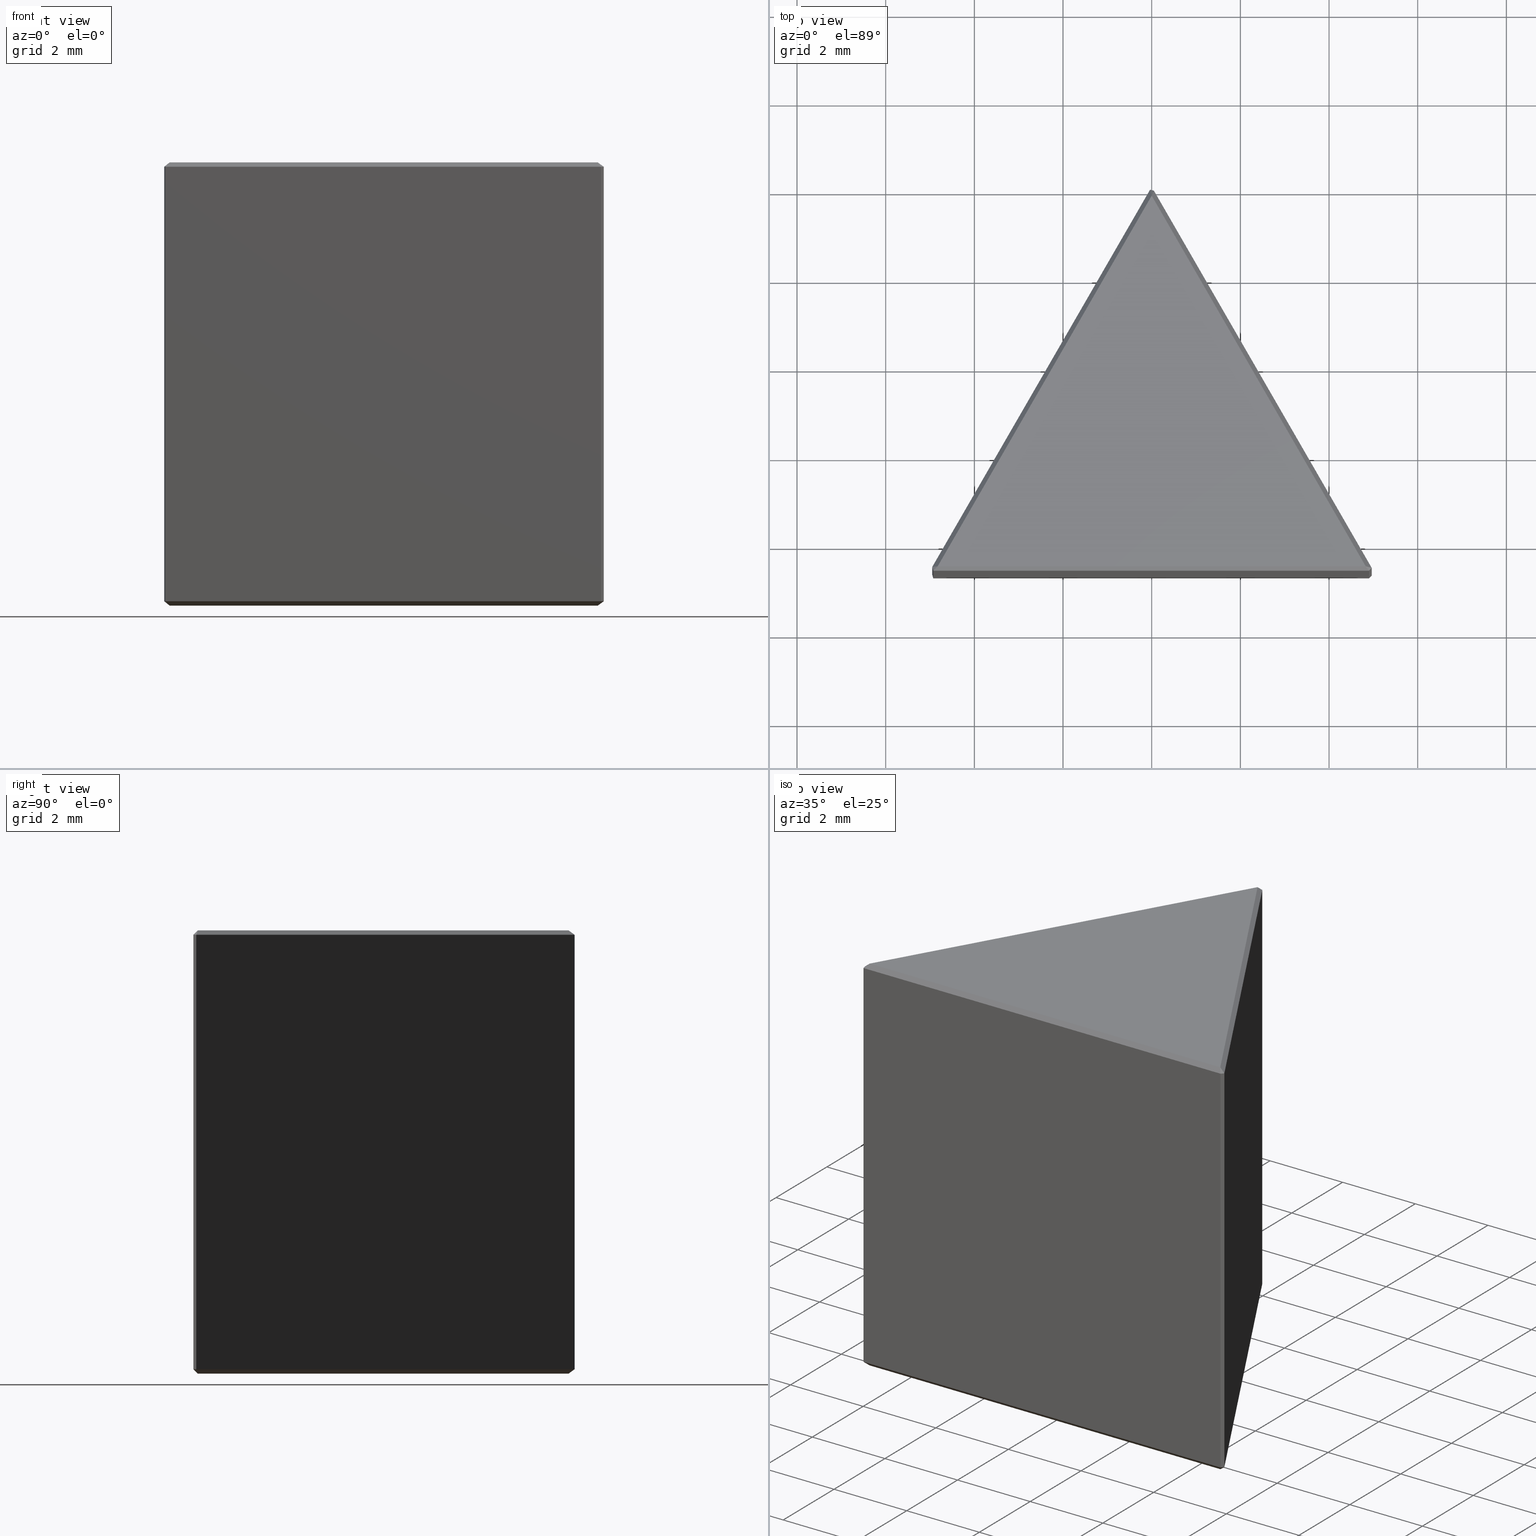
[diagram: canonical four-view strip — front | top / right | iso, engineering-drawing reading convention]
A machine part, canonical four-view strip (front | top / right | iso — engineering-drawing reading convention). The complete STEP part file that produces these views, byte-faithful:
ISO-10303-21;
HEADER;
FILE_DESCRIPTION (( 'STEP AP214' ),
    '1' );
FILE_NAME ('GPD-010-B.STEP',
    '2022-11-08T09:13:05',
    ( '' ),
    ( '' ),
    'SwSTEP 2.0',
    'SolidWorks 2022',
    '' );
FILE_SCHEMA (( 'AUTOMOTIVE_DESIGN' ));
ENDSEC;

DATA;
#1 = PLANE ( 'NONE',  #443 ) ;
#2 = VECTOR ( 'NONE', #394, 1000.000000000000227 ) ;
#3 = DIRECTION ( 'NONE',  ( 0.1636915368707669016, 0.6109051323707307413, 0.7745966692414746335 ) ) ;
#4 = DIRECTION ( 'NONE',  ( 0.000000000000000000, 0.000000000000000000, -1.000000000000000000 ) ) ;
#5 = CARTESIAN_POINT ( 'NONE',  ( 5.000000000000000000, -8.660254037844387298, 0.09999999999999939493 ) ) ;
#6 = CARTESIAN_POINT ( 'NONE',  ( -4.913397459621557495, -8.710254037844386232, 10.00000000000000000 ) ) ;
#7 = CARTESIAN_POINT ( 'NONE',  ( 4.899999999999998579, -8.660254037844387298, 0.09999999999999939493 ) ) ;
#8 =( LENGTH_UNIT ( ) NAMED_UNIT ( * ) SI_UNIT ( .MILLI., .METRE. ) );
#9 = AXIS2_PLACEMENT_3D ( 'NONE', #113, #150, #500 ) ;
#10 = CARTESIAN_POINT ( 'NONE',  ( -4.949999999999999289, -8.573651497465942128, 9.899999999999998579 ) ) ;
#11 = UNCERTAINTY_MEASURE_WITH_UNIT (LENGTH_MEASURE( 1.000000000000000082E-05 ), #34, 'distance_accuracy_value', 'NONE');
#12 = EDGE_CURVE ( 'NONE', #492, #442, #75, .T. ) ;
#13 = LINE ( 'NONE', #83, #335 ) ;
#14 = VECTOR ( 'NONE', #400, 1000.000000000000227 ) ;
#15 = FILL_AREA_STYLE_COLOUR ( '', #284 ) ;
#16 = DIRECTION ( 'NONE',  ( 0.8660254037844387076, -0.5000000000000001110, 0.000000000000000000 ) ) ;
#17 = DIRECTION ( 'NONE',  ( -0.2113248654051791131, 0.7886751345948235237, 0.5773502691896141847 ) ) ;
#18 = LINE ( 'NONE', #332, #407 ) ;
#19 = ORIENTED_EDGE ( 'NONE', *, *, #325, .F. ) ;
#20 = FACE_OUTER_BOUND ( 'NONE', #217, .T. ) ;
#21 = EDGE_CURVE ( 'NONE', #387, #414, #392, .T. ) ;
#22 = CARTESIAN_POINT ( 'NONE',  ( -5.000000000000000000, -8.660254037844387298, 0.09999999999999939493 ) ) ;
#23 = VECTOR ( 'NONE', #485, 1000.000000000000000 ) ;
#24 = ORIENTED_EDGE ( 'NONE', *, *, #47, .T. ) ;
#25 = FILL_AREA_STYLE ('',( #31 ) ) ;
#26 = VECTOR ( 'NONE', #17, 1000.000000000000000 ) ;
#27 = CARTESIAN_POINT ( 'NONE',  ( 0.08660254037844479502, -0.05000000000000055095, 0.000000000000000000 ) ) ;
#28 = SURFACE_STYLE_FILL_AREA ( #25 ) ;
#29 = DIRECTION ( 'NONE',  ( 1.000000000000000000, 0.000000000000000000, 0.000000000000000000 ) ) ;
#30 = CARTESIAN_POINT ( 'NONE',  ( 0.000000000000000000, 0.000000000000000000, 10.00000000000000000 ) ) ;
#31 = FILL_AREA_STYLE_COLOUR ( '', #274 ) ;
#32 = ADVANCED_FACE ( 'NONE', ( #82 ), #359, .F. ) ;
#33 = ORIENTED_EDGE ( 'NONE', *, *, #120, .F. ) ;
#34 =( LENGTH_UNIT ( ) NAMED_UNIT ( * ) SI_UNIT ( .MILLI., .METRE. ) );
#35 = ADVANCED_FACE ( 'NONE', ( #84 ), #173, .F. ) ;
#36 = VECTOR ( 'NONE', #280, 999.9999999999998863 ) ;
#37 = ORIENTED_EDGE ( 'NONE', *, *, #265, .T. ) ;
#38 = PLANE ( 'NONE',  #231 ) ;
#39 = ORIENTED_EDGE ( 'NONE', *, *, #391, .F. ) ;
#40 = ADVANCED_FACE ( 'NONE', ( #87 ), #1, .F. ) ;
#41 = ORIENTED_EDGE ( 'NONE', *, *, #218, .T. ) ;
#42 = VECTOR ( 'NONE', #336, 999.9999999999998863 ) ;
#43 = ORIENTED_EDGE ( 'NONE', *, *, #256, .T. ) ;
#44 = CARTESIAN_POINT ( 'NONE',  ( 5.000000000000000000, -8.660254037844387298, 10.00000000000000000 ) ) ;
#45 = LINE ( 'NONE', #172, #358 ) ;
#46 = DIRECTION ( 'NONE',  ( -0.6123724356957840342, -0.3535533905932677357, 0.7071067811865597852 ) ) ;
#47 = EDGE_CURVE ( 'NONE', #292, #333, #425, .T. ) ;
#48 = DIRECTION ( 'NONE',  ( 1.000000000000000000, 0.000000000000000000, 0.000000000000000000 ) ) ;
#49 = VECTOR ( 'NONE', #398, 1000.000000000000227 ) ;
#50 = PLANE ( 'NONE',  #243 ) ;
#51 =( NAMED_UNIT ( * ) PLANE_ANGLE_UNIT ( ) SI_UNIT ( $, .RADIAN. ) );
#52 = APPLICATION_CONTEXT ( 'automotive_design' ) ;
#53 = PLANE ( 'NONE',  #114 ) ;
#54 = CARTESIAN_POINT ( 'NONE',  ( 0.000000000000000000, 0.000000000000000000, 0.000000000000000000 ) ) ;
#55 = DIRECTION ( 'NONE',  ( -0.5773502691896357231, -0.5773502691896257311, 0.5773502691896158501 ) ) ;
#56 = APPLICATION_PROTOCOL_DEFINITION ( 'draft international standard', 'automotive_design', 1998, #293 ) ;
#57 = FACE_OUTER_BOUND ( 'NONE', #159, .T. ) ;
#58 = UNCERTAINTY_MEASURE_WITH_UNIT (LENGTH_MEASURE( 1.000000000000000082E-05 ), #158, 'distance_accuracy_value', 'NONE');
#59 = EDGE_LOOP ( 'NONE', ( #189, #369, #148, #77 ) ) ;
#60 = CARTESIAN_POINT ( 'NONE',  ( -5.085960881141425601E-17, -0.1999999999999986511, 10.00000000000000000 ) ) ;
#61 = VECTOR ( 'NONE', #253, 1000.000000000000000 ) ;
#62 = CARTESIAN_POINT ( 'NONE',  ( 0.000000000000000000, 0.000000000000000000, 0.000000000000000000 ) ) ;
#63 = CARTESIAN_POINT ( 'NONE',  ( 0.05000000000000062034, -0.08660254037844491992, 0.09999999999999903411 ) ) ;
#64 = ADVANCED_FACE ( 'NONE', ( #245 ), #464, .T. ) ;
#65 = ORIENTED_EDGE ( 'NONE', *, *, #356, .T. ) ;
#66 = DIRECTION ( 'NONE',  ( -0.000000000000000000, 0.7071067811865414665, 0.7071067811865536790 ) ) ;
#67 = VERTEX_POINT ( 'NONE', #204 ) ;
#68 = EDGE_CURVE ( 'NONE', #477, #305, #276, .T. ) ;
#69 = PLANE ( 'NONE',  #262 ) ;
#70 = VECTOR ( 'NONE', #469, 1000.000000000000114 ) ;
#71 = LINE ( 'NONE', #448, #42 ) ;
#72 = DIRECTION ( 'NONE',  ( -0.6123724356957999104, 0.3535533905932768950, 0.7071067811865412445 ) ) ;
#73 = EDGE_LOOP ( 'NONE', ( #339, #404, #19 ) ) ;
#74 = EDGE_LOOP ( 'NONE', ( #345, #215, #388 ) ) ;
#75 = LINE ( 'NONE', #10, #14 ) ;
#76 = EDGE_CURVE ( 'NONE', #67, #188, #125, .T. ) ;
#77 = ORIENTED_EDGE ( 'NONE', *, *, #89, .F. ) ;
#78 = ADVANCED_FACE ( 'NONE', ( #237 ), #53, .F. ) ;
#79 = ORIENTED_EDGE ( 'NONE', *, *, #249, .F. ) ;
#80 = MECHANICAL_DESIGN_GEOMETRIC_PRESENTATION_REPRESENTATION (  '', ( #229 ), #462 ) ;
#81 = CARTESIAN_POINT ( 'NONE',  ( 0.05000000000000062728, -0.08660254037844491992, 9.899999999999998579 ) ) ;
#82 = FACE_OUTER_BOUND ( 'NONE', #59, .T. ) ;
#83 = CARTESIAN_POINT ( 'NONE',  ( 0.05000000000000056483, -0.08660254037844497543, 10.00000000000000000 ) ) ;
#84 = FACE_OUTER_BOUND ( 'NONE', #474, .T. ) ;
#85 = UNCERTAINTY_MEASURE_WITH_UNIT (LENGTH_MEASURE( 1.000000000000000082E-05 ), #8, 'distance_accuracy_value', 'NONE');
#86 = CARTESIAN_POINT ( 'NONE',  ( -0.03660254037844420244, -0.06339745962155671211, 0.09999999999999913125 ) ) ;
#87 = FACE_OUTER_BOUND ( 'NONE', #74, .T. ) ;
#88 = AXIS2_PLACEMENT_3D ( 'NONE', #318, #461, #326 ) ;
#89 = EDGE_CURVE ( 'NONE', #457, #67, #248, .T. ) ;
#90 = FACE_OUTER_BOUND ( 'NONE', #190, .T. ) ;
#91 = DIRECTION ( 'NONE',  ( -0.4597008433809920969, 0.6279630301995566821, -0.6279630301995455799 ) ) ;
#92 = DIRECTION ( 'NONE',  ( 1.000000000000000000, 0.000000000000000000, -0.000000000000000000 ) ) ;
#93 = CARTESIAN_POINT ( 'NONE',  ( -4.926794919243112858, -8.660254037844387298, 0.09999999999999939493 ) ) ;
#94 = DIRECTION ( 'NONE',  ( 0.4472135954999703067, -0.4472135954999642005, 0.7745966692414727461 ) ) ;
#95 = DIRECTION ( 'NONE',  ( 0.000000000000000000, -0.7851876162409402449, 0.6192579489210210397 ) ) ;
#96 = LINE ( 'NONE', #99, #122 ) ;
#97 = ORIENTED_EDGE ( 'NONE', *, *, #267, .F. ) ;
#98 =( NAMED_UNIT ( * ) PLANE_ANGLE_UNIT ( ) SI_UNIT ( $, .RADIAN. ) );
#99 = CARTESIAN_POINT ( 'NONE',  ( -5.000000000000000000, -8.660254037844387298, 9.899999999999998579 ) ) ;
#100 = VERTEX_POINT ( 'NONE', #362 ) ;
#101 = CARTESIAN_POINT ( 'NONE',  ( 4.899999999999998579, -8.660254037844387298, 9.899999999999998579 ) ) ;
#102 = ORIENTED_EDGE ( 'NONE', *, *, #279, .T. ) ;
#103 = FACE_OUTER_BOUND ( 'NONE', #269, .T. ) ;
#104 = PLANE ( 'NONE',  #455 ) ;
#105 = ORIENTED_EDGE ( 'NONE', *, *, #446, .T. ) ;
#106 = DIRECTION ( 'NONE',  ( 0.000000000000000000, -0.7071067811865536790, 0.7071067811865414665 ) ) ;
#107 = AXIS2_PLACEMENT_3D ( 'NONE', #395, #460, #4 ) ;
#108 = EDGE_CURVE ( 'NONE', #305, #457, #321, .T. ) ;
#109 = ORIENTED_EDGE ( 'NONE', *, *, #198, .T. ) ;
#110 = ORIENTED_EDGE ( 'NONE', *, *, #267, .T. ) ;
#111 = EDGE_LOOP ( 'NONE', ( #191, #486, #418 ) ) ;
#112 = AXIS2_PLACEMENT_3D ( 'NONE', #297, #228, #478 ) ;
#113 = CARTESIAN_POINT ( 'NONE',  ( -5.000000000000000000, -8.660254037844387298, 10.00000000000000000 ) ) ;
#114 = AXIS2_PLACEMENT_3D ( 'NONE', #44, #162, #436 ) ;
#115 = ORIENTED_EDGE ( 'NONE', *, *, #120, .T. ) ;
#116 = FACE_OUTER_BOUND ( 'NONE', #258, .T. ) ;
#117 = EDGE_LOOP ( 'NONE', ( #105, #102, #351, #24 ) ) ;
#118 = DIRECTION ( 'NONE',  ( -0.6109051323707356262, -0.1636915368707561325, 0.7745966692414730792 ) ) ;
#119 = PRODUCT ( 'GPD-010-B', 'GPD-010-B', '', ( #219 ) ) ;
#120 = EDGE_CURVE ( 'NONE', #292, #496, #45, .T. ) ;
#121 = ADVANCED_FACE ( 'NONE', ( #466 ), #430, .T. ) ;
#122 = VECTOR ( 'NONE', #411, 1000.000000000000000 ) ;
#123 = VECTOR ( 'NONE', #440, 1000.000000000000114 ) ;
#124 = CARTESIAN_POINT ( 'NONE',  ( 4.899999999999998579, -8.660254037844387298, 9.899999999999998579 ) ) ;
#125 = LINE ( 'NONE', #273, #36 ) ;
#126 = DIRECTION ( 'NONE',  ( -0.5000000000000000000, 0.8660254037844385966, 0.000000000000000000 ) ) ;
#127 = PRESENTATION_STYLE_ASSIGNMENT (( #209 ) ) ;
#128 = EDGE_CURVE ( 'NONE', #353, #177, #169, .T. ) ;
#129 = CARTESIAN_POINT ( 'NONE',  ( -0.08660254037844333785, -0.04999999999999969746, 10.00000000000000000 ) ) ;
#130 = LINE ( 'NONE', #213, #26 ) ;
#131 = DIRECTION ( 'NONE',  ( 0.000000000000000000, 0.000000000000000000, 1.000000000000000000 ) ) ;
#132 = AXIS2_PLACEMENT_3D ( 'NONE', #344, #360, #166 ) ;
#133 = CARTESIAN_POINT ( 'NONE',  ( 4.826794919243109661, -8.560254037844385877, 0.000000000000000000 ) ) ;
#134 = DIRECTION ( 'NONE',  ( 0.5000000000000001110, 0.8660254037844385966, 0.000000000000000000 ) ) ;
#135 = PRODUCT_DEFINITION_CONTEXT ( 'detailed design', #52, 'design' ) ;
#136 = PLANE ( 'NONE',  #434 ) ;
#137 = CARTESIAN_POINT ( 'NONE',  ( -4.949999999999999289, -8.573651497465942128, 10.00000000000000000 ) ) ;
#138 = LINE ( 'NONE', #141, #123 ) ;
#139 = VECTOR ( 'NONE', #338, 1000.000000000000000 ) ;
#140 = ORIENTED_EDGE ( 'NONE', *, *, #260, .F. ) ;
#141 = CARTESIAN_POINT ( 'NONE',  ( -0.02886751345948138092, -0.09226497308103827344, 9.921132486540518158 ) ) ;
#142 = CARTESIAN_POINT ( 'NONE',  ( 4.899999999999998579, -8.660254037844387298, 9.899999999999998579 ) ) ;
#143 = CARTESIAN_POINT ( 'NONE',  ( 0.000000000000000000, -8.560254037844387653, 10.00000000000000000 ) ) ;
#144 = CARTESIAN_POINT ( 'NONE',  ( -4.926794919243112858, -8.660254037844387298, 0.09999999999999939493 ) ) ;
#145 = ORIENTED_EDGE ( 'NONE', *, *, #325, .T. ) ;
#146 = CARTESIAN_POINT ( 'NONE',  ( -0.03660254037844420938, -0.06339745962155671211, 9.899999999999998579 ) ) ;
#147 = AXIS2_PLACEMENT_3D ( 'NONE', #427, #401, #207 ) ;
#148 = ORIENTED_EDGE ( 'NONE', *, *, #463, .F. ) ;
#149 = ADVANCED_FACE ( 'NONE', ( #240 ), #323, .T. ) ;
#150 = DIRECTION ( 'NONE',  ( 0.000000000000000000, 1.000000000000000000, 0.000000000000000000 ) ) ;
#151 = CARTESIAN_POINT ( 'NONE',  ( 0.08660254037844332398, -0.04999999999999969053, 10.00000000000000000 ) ) ;
#152 = ORIENTED_EDGE ( 'NONE', *, *, #350, .T. ) ;
#153 = DIRECTION ( 'NONE',  ( 0.5000000000000001110, 0.8660254037844387076, 0.000000000000000000 ) ) ;
#154 = EDGE_LOOP ( 'NONE', ( #225, #79, #140, #316 ) ) ;
#155 = MECHANICAL_DESIGN_GEOMETRIC_PRESENTATION_REPRESENTATION (  '', ( #163 ), #396 ) ;
#156 = VECTOR ( 'NONE', #433, 1000.000000000000000 ) ;
#157 = VERTEX_POINT ( 'NONE', #432 ) ;
#158 =( LENGTH_UNIT ( ) NAMED_UNIT ( * ) SI_UNIT ( .MILLI., .METRE. ) );
#159 = EDGE_LOOP ( 'NONE', ( #33, #181, #272, #236 ) ) ;
#160 = EDGE_CURVE ( 'NONE', #157, #100, #224, .T. ) ;
#161 = ADVANCED_FACE ( 'NONE', ( #57 ), #69, .F. ) ;
#162 = DIRECTION ( 'NONE',  ( -0.8660254037844387076, -0.5000000000000001110, 0.000000000000000000 ) ) ;
#163 = STYLED_ITEM ( 'NONE', ( #341 ), #459 ) ;
#164 = VECTOR ( 'NONE', #377, 1000.000000000000000 ) ;
#165 = CARTESIAN_POINT ( 'NONE',  ( -4.949999999999999289, -8.573651497465942128, 9.899999999999998579 ) ) ;
#166 = DIRECTION ( 'NONE',  ( 0.000000000000000000, 0.7851876162409597848, 0.6192579489209962817 ) ) ;
#167 =( NAMED_UNIT ( * ) SI_UNIT ( $, .STERADIAN. ) SOLID_ANGLE_UNIT ( ) );
#168 = ADVANCED_FACE ( 'NONE', ( #370 ), #184, .F. ) ;
#169 = LINE ( 'NONE', #124, #211 ) ;
#170 = LINE ( 'NONE', #283, #312 ) ;
#171 =( NAMED_UNIT ( * ) SI_UNIT ( $, .STERADIAN. ) SOLID_ANGLE_UNIT ( ) );
#172 = CARTESIAN_POINT ( 'NONE',  ( -4.926794919243112858, -8.660254037844387298, 0.09999999999999939493 ) ) ;
#173 = PLANE ( 'NONE',  #107 ) ;
#174 = VECTOR ( 'NONE', #134, 1000.000000000000114 ) ;
#175 = DIRECTION ( 'NONE',  ( 0.000000000000000000, 0.000000000000000000, 1.000000000000000000 ) ) ;
#176 = CARTESIAN_POINT ( 'NONE',  ( -4.905662432702594167, -8.639121551303865942, 9.921132486540518158 ) ) ;
#177 = VERTEX_POINT ( 'NONE', #261 ) ;
#178 = EDGE_CURVE ( 'NONE', #442, #292, #413, .T. ) ;
#179 = CARTESIAN_POINT ( 'NONE',  ( 4.963397459621555541, -8.596856578222828560, 0.09999999999999903411 ) ) ;
#180 = DIRECTION ( 'NONE',  ( 1.000000000000000000, 0.000000000000000000, -0.000000000000000000 ) ) ;
#181 = ORIENTED_EDGE ( 'NONE', *, *, #178, .F. ) ;
#182 = LINE ( 'NONE', #137, #200 ) ;
#183 = VECTOR ( 'NONE', #55, 999.9999999999998863 ) ;
#184 = PLANE ( 'NONE',  #450 ) ;
#185 = ORIENTED_EDGE ( 'NONE', *, *, #128, .F. ) ;
#186 = SURFACE_STYLE_USAGE ( .BOTH. , #475 ) ;
#187 = ORIENTED_EDGE ( 'NONE', *, *, #12, .T. ) ;
#188 = VERTEX_POINT ( 'NONE', #63 ) ;
#189 = ORIENTED_EDGE ( 'NONE', *, *, #218, .F. ) ;
#190 = EDGE_LOOP ( 'NONE', ( #317, #37, #264 ) ) ;
#191 = ORIENTED_EDGE ( 'NONE', *, *, #463, .T. ) ;
#192 = FACE_OUTER_BOUND ( 'NONE', #117, .T. ) ;
#193 = VECTOR ( 'NONE', #368, 1000.000000000000000 ) ;
#194 = ADVANCED_FACE ( 'NONE', ( #289 ), #445, .F. ) ;
#195 = ORIENTED_EDGE ( 'NONE', *, *, #484, .T. ) ;
#196 = CARTESIAN_POINT ( 'NONE',  ( 4.963397459621555541, -8.596856578222828560, 10.00000000000000000 ) ) ;
#197 = DIRECTION ( 'NONE',  ( 0.4597008433809659511, -0.6279630301995552388, -0.6279630301995660080 ) ) ;
#198 = EDGE_CURVE ( 'NONE', #414, #353, #437, .T. ) ;
#199 = DIRECTION ( 'NONE',  ( -0.8660254037844433705, 0.000000000000000000, -0.4999999999999917843 ) ) ;
#200 = VECTOR ( 'NONE', #221, 1000.000000000000000 ) ;
#201 = DIRECTION ( 'NONE',  ( 0.5000000000000001110, -0.8660254037844387076, -0.000000000000000000 ) ) ;
#202 = LINE ( 'NONE', #277, #2 ) ;
#203 = CARTESIAN_POINT ( 'NONE',  ( 4.963397459621555541, -8.596856578222828560, 0.09999999999999903411 ) ) ;
#204 = CARTESIAN_POINT ( 'NONE',  ( 4.963397459621555541, -8.596856578222828560, 0.09999999999999903411 ) ) ;
#205 = FACE_OUTER_BOUND ( 'NONE', #111, .T. ) ;
#206 = SURFACE_SIDE_STYLE ('',( #285 ) ) ;
#207 = DIRECTION ( 'NONE',  ( 0.000000000000000000, 0.000000000000000000, -1.000000000000000000 ) ) ;
#208 = CARTESIAN_POINT ( 'NONE',  ( 4.826794919243114101, -8.560254037844387653, 10.00000000000000000 ) ) ;
#209 = SURFACE_STYLE_USAGE ( .BOTH. , #206 ) ;
#210 = DIRECTION ( 'NONE',  ( 0.000000000000000000, 0.000000000000000000, 1.000000000000000000 ) ) ;
#211 = VECTOR ( 'NONE', #197, 999.9999999999998863 ) ;
#212 = ADVANCED_FACE ( 'NONE', ( #483 ), #104, .T. ) ;
#213 = CARTESIAN_POINT ( 'NONE',  ( -0.03660254037844420244, -0.06339745962155671211, 0.09999999999999913125 ) ) ;
#214 = DIRECTION ( 'NONE',  ( 1.000000000000000000, 0.000000000000000000, 0.000000000000000000 ) ) ;
#215 = ORIENTED_EDGE ( 'NONE', *, *, #424, .T. ) ;
#216 = CARTESIAN_POINT ( 'NONE',  ( -4.926794919243112858, -8.660254037844387298, 10.00000000000000000 ) ) ;
#217 = EDGE_LOOP ( 'NONE', ( #97, #421, #185, #232 ) ) ;
#218 = EDGE_CURVE ( 'NONE', #177, #457, #329, .T. ) ;
#219 = PRODUCT_CONTEXT ( 'NONE', #293, 'mechanical' ) ;
#220 = VECTOR ( 'NONE', #153, 999.9999999999998863 ) ;
#221 = DIRECTION ( 'NONE',  ( 0.000000000000000000, 0.000000000000000000, 1.000000000000000000 ) ) ;
#222 = AXIS2_PLACEMENT_3D ( 'NONE', #327, #3, #95 ) ;
#223 = EDGE_LOOP ( 'NONE', ( #152, #337, #389, #419 ) ) ;
#224 = LINE ( 'NONE', #27, #174 ) ;
#225 = ORIENTED_EDGE ( 'NONE', *, *, #439, .T. ) ;
#226 = CARTESIAN_POINT ( 'NONE',  ( -0.03660254037844420244, -0.06339745962155671211, 10.00000000000000000 ) ) ;
#227 = ORIENTED_EDGE ( 'NONE', *, *, #271, .F. ) ;
#228 = DIRECTION ( 'NONE',  ( 0.6123724356957892523, -0.3535533905932707333, 0.7071067811865536790 ) ) ;
#229 = STYLED_ITEM ( 'NONE', ( #127 ), #495 ) ;
#230 = VERTEX_POINT ( 'NONE', #298 ) ;
#231 = AXIS2_PLACEMENT_3D ( 'NONE', #151, #72, #266 ) ;
#232 = ORIENTED_EDGE ( 'NONE', *, *, #198, .F. ) ;
#233 = ORIENTED_EDGE ( 'NONE', *, *, #484, .F. ) ;
#234 = ADVANCED_FACE ( 'NONE', ( #257 ), #408, .T. ) ;
#235 = CARTESIAN_POINT ( 'NONE',  ( -4.949999999999999289, -8.573651497465942128, 0.09999999999999913125 ) ) ;
#236 = ORIENTED_EDGE ( 'NONE', *, *, #242, .F. ) ;
#237 = FACE_OUTER_BOUND ( 'NONE', #313, .T. ) ;
#238 = DIRECTION ( 'NONE',  ( 0.9659258262890674240, -0.2588190451025237371, 6.747812811400846156E-16 ) ) ;
#239 = CARTESIAN_POINT ( 'NONE',  ( 4.934529946162074410, -8.589121551303867008, 9.921132486540518158 ) ) ;
#240 = FACE_OUTER_BOUND ( 'NONE', #223, .T. ) ;
#241 = LINE ( 'NONE', #239, #49 ) ;
#242 = EDGE_CURVE ( 'NONE', #496, #492, #182, .T. ) ;
#243 = AXIS2_PLACEMENT_3D ( 'NONE', #5, #46, #126 ) ;
#244 = LINE ( 'NONE', #203, #441 ) ;
#245 = FACE_OUTER_BOUND ( 'NONE', #422, .T. ) ;
#246 = DIRECTION ( 'NONE',  ( 0.4472135954999524321, -0.4472135954999507113, -0.7745966692414907317 ) ) ;
#247 = LINE ( 'NONE', #493, #220 ) ;
#248 = LINE ( 'NONE', #196, #294 ) ;
#249 = EDGE_CURVE ( 'NONE', #100, #340, #250, .T. ) ;
#250 = LINE ( 'NONE', #328, #286 ) ;
#251 = ORIENTED_EDGE ( 'NONE', *, *, #391, .T. ) ;
#252 = CARTESIAN_POINT ( 'NONE',  ( -4.949999999999999289, -8.573651497465942128, 9.899999999999998579 ) ) ;
#253 = DIRECTION ( 'NONE',  ( 0.3139815150997828930, 0.7120941236088286219, -0.6279630301995645647 ) ) ;
#254 = ORIENTED_EDGE ( 'NONE', *, *, #76, .T. ) ;
#255 = DIRECTION ( 'NONE',  ( 0.000000000000000000, 0.000000000000000000, -1.000000000000000000 ) ) ;
#256 = EDGE_CURVE ( 'NONE', #230, #496, #71, .T. ) ;
#257 = FACE_OUTER_BOUND ( 'NONE', #453, .T. ) ;
#258 = EDGE_LOOP ( 'NONE', ( #251, #454, #227, #233 ) ) ;
#259 = PLANE ( 'NONE',  #112 ) ;
#260 = EDGE_CURVE ( 'NONE', #188, #100, #18, .T. ) ;
#261 = CARTESIAN_POINT ( 'NONE',  ( 4.899999999999998579, -8.660254037844387298, 9.899999999999998579 ) ) ;
#262 = AXIS2_PLACEMENT_3D ( 'NONE', #216, #291, #255 ) ;
#263 = ORIENTED_EDGE ( 'NONE', *, *, #256, .F. ) ;
#264 = ORIENTED_EDGE ( 'NONE', *, *, #68, .F. ) ;
#265 = EDGE_CURVE ( 'NONE', #387, #305, #473, .T. ) ;
#266 = DIRECTION ( 'NONE',  ( 0.5000000000000000000, 0.8660254037844385966, -0.000000000000000000 ) ) ;
#267 = EDGE_CURVE ( 'NONE', #442, #414, #367, .T. ) ;
#268 = ORIENTED_EDGE ( 'NONE', *, *, #320, .F. ) ;
#269 = EDGE_LOOP ( 'NONE', ( #308, #263, #349, #309 ) ) ;
#270 = ORIENTED_EDGE ( 'NONE', *, *, #342, .F. ) ;
#271 = EDGE_CURVE ( 'NONE', #477, #387, #138, .T. ) ;
#272 = ORIENTED_EDGE ( 'NONE', *, *, #12, .F. ) ;
#273 = CARTESIAN_POINT ( 'NONE',  ( 5.000000000000000000, -8.660254037844387298, 0.09999999999999939493 ) ) ;
#274 = COLOUR_RGB ( '',1.000000000000000000, 1.000000000000000000, 1.000000000000000000 ) ;
#275 = AXIS2_PLACEMENT_3D ( 'NONE', #444, #210, #180 ) ;
#276 = LINE ( 'NONE', #81, #426 ) ;
#277 = CARTESIAN_POINT ( 'NONE',  ( -4.941746824526945581, -8.572754037844385167, 0.09330127018922210191 ) ) ;
#278 =( NAMED_UNIT ( * ) PLANE_ANGLE_UNIT ( ) SI_UNIT ( $, .RADIAN. ) );
#279 = EDGE_CURVE ( 'NONE', #177, #442, #96, .T. ) ;
#280 = DIRECTION ( 'NONE',  ( -0.5000000000000001110, 0.8660254037844387076, 0.000000000000000000 ) ) ;
#281 = FACE_OUTER_BOUND ( 'NONE', #154, .T. ) ;
#282 = DIRECTION ( 'NONE',  ( 0.5000000000000000000, -0.8660254037844385966, 0.000000000000000000 ) ) ;
#283 = CARTESIAN_POINT ( 'NONE',  ( 4.963397459621555541, -8.596856578222828560, 0.09999999999999903411 ) ) ;
#284 = COLOUR_RGB ( '',1.000000000000000000, 1.000000000000000000, 1.000000000000000000 ) ;
#285 = SURFACE_STYLE_FILL_AREA ( #431 ) ;
#286 = VECTOR ( 'NONE', #417, 1000.000000000000114 ) ;
#287 = DIRECTION ( 'NONE',  ( 0.7851876162409372473, 0.000000000000000000, 0.6192579489210249255 ) ) ;
#288 = ADVANCED_FACE ( 'NONE', ( #116 ), #38, .T. ) ;
#289 = FACE_OUTER_BOUND ( 'NONE', #385, .T. ) ;
#290 = CARTESIAN_POINT ( 'NONE',  ( -4.826794919243114101, -8.560254037844387653, 10.00000000000000000 ) ) ;
#291 = DIRECTION ( 'NONE',  ( 0.9659258262890725311, 0.2588190451025050853, 0.000000000000000000 ) ) ;
#292 = VERTEX_POINT ( 'NONE', #144 ) ;
#293 = APPLICATION_CONTEXT ( 'automotive_design' ) ;
#294 = VECTOR ( 'NONE', #355, 1000.000000000000000 ) ;
#295 = CARTESIAN_POINT ( 'NONE',  ( -4.926794919243112858, -8.660254037844387298, 10.00000000000000000 ) ) ;
#296 = ORIENTED_EDGE ( 'NONE', *, *, #68, .T. ) ;
#297 = CARTESIAN_POINT ( 'NONE',  ( 0.000000000000000000, 0.000000000000000000, 0.09999999999999939493 ) ) ;
#298 = CARTESIAN_POINT ( 'NONE',  ( -0.03660254037844420244, -0.06339745962155671211, 0.09999999999999913125 ) ) ;
#299 = ORIENTED_EDGE ( 'NONE', *, *, #21, .T. ) ;
#300 = PLANE ( 'NONE',  #384 ) ;
#301 = DIRECTION ( 'NONE',  ( 0.5000000000000000000, 0.8660254037844385966, 0.000000000000000000 ) ) ;
#302 = ORIENTED_EDGE ( 'NONE', *, *, #307, .F. ) ;
#303 = PRESENTATION_LAYER_ASSIGNMENT (  '', '', ( #229 ) ) ;
#304 = VECTOR ( 'NONE', #48, 1000.000000000000000 ) ;
#305 = VERTEX_POINT ( 'NONE', #346 ) ;
#306 = LINE ( 'NONE', #452, #23 ) ;
#307 = EDGE_CURVE ( 'NONE', #477, #230, #348, .T. ) ;
#308 = ORIENTED_EDGE ( 'NONE', *, *, #320, .T. ) ;
#309 = ORIENTED_EDGE ( 'NONE', *, *, #160, .F. ) ;
#310 = ADVANCED_FACE ( 'NONE', ( #494 ), #311, .T. ) ;
#311 = PLANE ( 'NONE',  #132 ) ;
#312 = VECTOR ( 'NONE', #482, 1000.000000000000227 ) ;
#313 = EDGE_LOOP ( 'NONE', ( #65, #420, #409, #254 ) ) ;
#314 = VECTOR ( 'NONE', #472, 1000.000000000000114 ) ;
#315 = CARTESIAN_POINT ( 'NONE',  ( -4.949999999999999289, -8.573651497465942128, 9.899999999999998579 ) ) ;
#316 = ORIENTED_EDGE ( 'NONE', *, *, #76, .F. ) ;
#317 = ORIENTED_EDGE ( 'NONE', *, *, #271, .T. ) ;
#318 = CARTESIAN_POINT ( 'NONE',  ( -4.926794919243112858, -8.660254037844387298, 0.09999999999999939493 ) ) ;
#319 = VECTOR ( 'NONE', #381, 1000.000000000000000 ) ;
#320 = EDGE_CURVE ( 'NONE', #157, #496, #202, .T. ) ;
#321 = LINE ( 'NONE', #501, #406 ) ;
#322 = LINE ( 'NONE', #86, #479 ) ;
#323 = PLANE ( 'NONE',  #416 ) ;
#324 = LINE ( 'NONE', #252, #314 ) ;
#325 = EDGE_CURVE ( 'NONE', #188, #230, #322, .T. ) ;
#326 = DIRECTION ( 'NONE',  ( -0.7851876162409547888, 0.000000000000000000, 0.6192579489210027210 ) ) ;
#327 = CARTESIAN_POINT ( 'NONE',  ( 0.05000000000000062728, -0.08660254037844491992, 9.899999999999998579 ) ) ;
#328 = CARTESIAN_POINT ( 'NONE',  ( -0.08660254037844636321, -0.05000000000000144607, 0.000000000000000000 ) ) ;
#329 = LINE ( 'NONE', #142, #139 ) ;
#330 = EDGE_LOOP ( 'NONE', ( #347, #41, #456 ) ) ;
#331 = LINE ( 'NONE', #467, #156 ) ;
#332 = CARTESIAN_POINT ( 'NONE',  ( 0.04665063509461123831, -0.09419872981077902219, 0.09330127018922121374 ) ) ;
#333 = VERTEX_POINT ( 'NONE', #7 ) ;
#334 = VECTOR ( 'NONE', #91, 999.9999999999998863 ) ;
#335 = VECTOR ( 'NONE', #175, 1000.000000000000000 ) ;
#336 = DIRECTION ( 'NONE',  ( -0.5000000000000001110, -0.8660254037844387076, 0.000000000000000000 ) ) ;
#337 = ORIENTED_EDGE ( 'NONE', *, *, #108, .F. ) ;
#338 = DIRECTION ( 'NONE',  ( 0.7071067811865426878, 0.7071067811865524577, -2.866583523299665378E-17 ) ) ;
#339 = ORIENTED_EDGE ( 'NONE', *, *, #260, .T. ) ;
#340 = VERTEX_POINT ( 'NONE', #133 ) ;
#341 = PRESENTATION_STYLE_ASSIGNMENT (( #186 ) ) ;
#342 = EDGE_CURVE ( 'NONE', #157, #292, #365, .T. ) ;
#343 = PRODUCT_DEFINITION_FORMATION_WITH_SPECIFIED_SOURCE ( '�κ�', '', #119, .NOT_KNOWN. ) ;
#344 = CARTESIAN_POINT ( 'NONE',  ( -0.03660254037844420244, -0.06339745962155671211, 0.09999999999999913125 ) ) ;
#345 = ORIENTED_EDGE ( 'NONE', *, *, #249, .T. ) ;
#346 = CARTESIAN_POINT ( 'NONE',  ( 0.05000000000000062728, -0.08660254037844491992, 9.899999999999998579 ) ) ;
#347 = ORIENTED_EDGE ( 'NONE', *, *, #128, .T. ) ;
#348 = LINE ( 'NONE', #226, #319 ) ;
#349 = ORIENTED_EDGE ( 'NONE', *, *, #390, .F. ) ;
#350 = EDGE_CURVE ( 'NONE', #353, #457, #241, .T. ) ;
#351 = ORIENTED_EDGE ( 'NONE', *, *, #178, .T. ) ;
#352 = VECTOR ( 'NONE', #481, 1000.000000000000114 ) ;
#353 = VERTEX_POINT ( 'NONE', #208 ) ;
#354 = PLANE ( 'NONE',  #9 ) ;
#355 = DIRECTION ( 'NONE',  ( 0.000000000000000000, 0.000000000000000000, -1.000000000000000000 ) ) ;
#356 = EDGE_CURVE ( 'NONE', #188, #305, #13, .T. ) ;
#357 = DIRECTION ( 'NONE',  ( 0.6123724356957999104, 0.3535533905932768950, 0.7071067811865412445 ) ) ;
#358 = VECTOR ( 'NONE', #393, 1000.000000000000114 ) ;
#359 = PLANE ( 'NONE',  #147 ) ;
#360 = DIRECTION ( 'NONE',  ( 0.1636915368707596297, 0.6109051323707070935, -0.7745966692414948396 ) ) ;
#361 = DIRECTION ( 'NONE',  ( -0.7071067811865426878, -0.7071067811865522357, 4.048687686840371813E-15 ) ) ;
#362 = CARTESIAN_POINT ( 'NONE',  ( -1.083700895443211318E-15, -0.2000000000000040357, 0.000000000000000000 ) ) ;
#363 = LINE ( 'NONE', #470, #374 ) ;
#364 = CARTESIAN_POINT ( 'NONE',  ( -5.000000000000000000, -8.660254037844387298, 0.09999999999999939493 ) ) ;
#365 = LINE ( 'NONE', #93, #183 ) ;
#366 = CLOSED_SHELL ( 'NONE', ( #78, #194, #490, #234, #40, #449, #161, #168, #32, #212, #64, #121, #397, #149, #288, #458, #386, #429, #310, #35 ) ) ;
#367 = LINE ( 'NONE', #176, #352 ) ;
#368 = DIRECTION ( 'NONE',  ( 1.000000000000000000, 0.000000000000000000, 0.000000000000000000 ) ) ;
#369 = ORIENTED_EDGE ( 'NONE', *, *, #446, .F. ) ;
#370 = FACE_OUTER_BOUND ( 'NONE', #382, .T. ) ;
#371 = ORIENTED_EDGE ( 'NONE', *, *, #356, .F. ) ;
#372 = CARTESIAN_POINT ( 'NONE',  ( -4.926794919243112858, -8.660254037844387298, 9.899999999999998579 ) ) ;
#373 = APPLICATION_PROTOCOL_DEFINITION ( 'draft international standard', 'automotive_design', 1998, #52 ) ;
#374 = VECTOR ( 'NONE', #438, 1000.000000000000114 ) ;
#375 = DIRECTION ( 'NONE',  ( 0.8660254037844297148, 0.000000000000000000, -0.5000000000000155431 ) ) ;
#376 = CARTESIAN_POINT ( 'NONE',  ( 4.963397459621555541, -8.596856578222828560, 9.899999999999998579 ) ) ;
#377 = DIRECTION ( 'NONE',  ( 0.000000000000000000, 0.000000000000000000, -1.000000000000000000 ) ) ;
#378 = ORIENTED_EDGE ( 'NONE', *, *, #307, .T. ) ;
#379 = DIRECTION ( 'NONE',  ( -1.000000000000000000, 0.000000000000000000, 0.000000000000000000 ) ) ;
#380 = SHAPE_DEFINITION_REPRESENTATION ( #383, #495 ) ;
#381 = DIRECTION ( 'NONE',  ( 0.000000000000000000, 0.000000000000000000, -1.000000000000000000 ) ) ;
#382 = EDGE_LOOP ( 'NONE', ( #447, #498, #270, #499 ) ) ;
#383 = PRODUCT_DEFINITION_SHAPE ( 'NONE', 'NONE',  #465 ) ;
#384 = AXIS2_PLACEMENT_3D ( 'NONE', #143, #106, #379 ) ;
#385 = EDGE_LOOP ( 'NONE', ( #451, #195, #378, #43 ) ) ;
#386 = ADVANCED_FACE ( 'NONE', ( #281 ), #50, .F. ) ;
#387 = VERTEX_POINT ( 'NONE', #60 ) ;
#388 = ORIENTED_EDGE ( 'NONE', *, *, #160, .T. ) ;
#389 = ORIENTED_EDGE ( 'NONE', *, *, #265, .F. ) ;
#390 = EDGE_CURVE ( 'NONE', #100, #230, #130, .T. ) ;
#391 = EDGE_CURVE ( 'NONE', #492, #414, #324, .T. ) ;
#392 = LINE ( 'NONE', #6, #70 ) ;
#393 = DIRECTION ( 'NONE',  ( -0.2588190451025050298, 0.9659258262890724200, -2.909567590720877370E-15 ) ) ;
#394 = DIRECTION ( 'NONE',  ( -0.7736823584807662746, -0.08413109340929041113, 0.6279630301995462460 ) ) ;
#395 = CARTESIAN_POINT ( 'NONE',  ( -0.03660254037844420244, -0.06339745962155671211, 10.00000000000000000 ) ) ;
#396 =( GEOMETRIC_REPRESENTATION_CONTEXT ( 3 ) GLOBAL_UNCERTAINTY_ASSIGNED_CONTEXT ( ( #11 ) ) GLOBAL_UNIT_ASSIGNED_CONTEXT ( ( #34, #98, #171 ) ) REPRESENTATION_CONTEXT ( 'NONE', 'WORKASPACE' ) );
#397 = ADVANCED_FACE ( 'NONE', ( #205 ), #136, .T. ) ;
#398 = DIRECTION ( 'NONE',  ( 0.7886751345948077585, -0.2113248654051742281, -0.5773502691896376104 ) ) ;
#399 = AXIS2_PLACEMENT_3D ( 'NONE', #30, #16, #301 ) ;
#400 = DIRECTION ( 'NONE',  ( 0.2588190451025050853, -0.9659258262890724200, -1.433291761649829607E-17 ) ) ;
#401 = DIRECTION ( 'NONE',  ( -0.7071067811865523467, 0.7071067811865426878, 0.000000000000000000 ) ) ;
#402 = DIRECTION ( 'NONE',  ( -0.3139815150997799509, -0.7120941236088510484, -0.6279630301995405839 ) ) ;
#403 = PRESENTATION_LAYER_ASSIGNMENT (  '', '', ( #163 ) ) ;
#404 = ORIENTED_EDGE ( 'NONE', *, *, #390, .T. ) ;
#405 = DIRECTION ( 'NONE',  ( -0.9659258262890674240, 0.2588190451025237371, 1.855534740682983873E-15 ) ) ;
#406 = VECTOR ( 'NONE', #201, 999.9999999999998863 ) ;
#407 = VECTOR ( 'NONE', #402, 1000.000000000000114 ) ;
#408 = PLANE ( 'NONE',  #275 ) ;
#409 = ORIENTED_EDGE ( 'NONE', *, *, #89, .T. ) ;
#410 = DIRECTION ( 'NONE',  ( 0.000000000000000000, 0.000000000000000000, 1.000000000000000000 ) ) ;
#411 = DIRECTION ( 'NONE',  ( -1.000000000000000000, 0.000000000000000000, 0.000000000000000000 ) ) ;
#412 = EDGE_LOOP ( 'NONE', ( #423, #115, #268 ) ) ;
#413 = LINE ( 'NONE', #295, #164 ) ;
#414 = VERTEX_POINT ( 'NONE', #290 ) ;
#415 = EDGE_CURVE ( 'NONE', #353, #387, #363, .T. ) ;
#416 = AXIS2_PLACEMENT_3D ( 'NONE', #129, #357, #282 ) ;
#417 = DIRECTION ( 'NONE',  ( 0.5000000000000001110, -0.8660254037844385966, 0.000000000000000000 ) ) ;
#418 = ORIENTED_EDGE ( 'NONE', *, *, #439, .F. ) ;
#419 = ORIENTED_EDGE ( 'NONE', *, *, #415, .F. ) ;
#420 = ORIENTED_EDGE ( 'NONE', *, *, #108, .T. ) ;
#421 = ORIENTED_EDGE ( 'NONE', *, *, #279, .F. ) ;
#422 = EDGE_LOOP ( 'NONE', ( #187, #110, #39 ) ) ;
#423 = ORIENTED_EDGE ( 'NONE', *, *, #342, .T. ) ;
#424 = EDGE_CURVE ( 'NONE', #340, #157, #331, .T. ) ;
#425 = LINE ( 'NONE', #364, #304 ) ;
#426 = VECTOR ( 'NONE', #238, 1000.000000000000227 ) ;
#427 = CARTESIAN_POINT ( 'NONE',  ( 4.963397459621555541, -8.596856578222828560, 10.00000000000000000 ) ) ;
#428 = PLANE ( 'NONE',  #222 ) ;
#429 = ADVANCED_FACE ( 'NONE', ( #90 ), #428, .T. ) ;
#430 = PLANE ( 'NONE',  #88 ) ;
#431 = FILL_AREA_STYLE ('',( #15 ) ) ;
#432 = CARTESIAN_POINT ( 'NONE',  ( -4.826794919243110549, -8.560254037844385877, 0.000000000000000000 ) ) ;
#433 = DIRECTION ( 'NONE',  ( -1.000000000000000000, 0.000000000000000000, 0.000000000000000000 ) ) ;
#434 = AXIS2_PLACEMENT_3D ( 'NONE', #179, #246, #199 ) ;
#435 = CARTESIAN_POINT ( 'NONE',  ( 4.895096189432332601, -8.653555308033608284, 0.09330127018922114435 ) ) ;
#436 = DIRECTION ( 'NONE',  ( 0.5000000000000000000, -0.8660254037844385966, 0.000000000000000000 ) ) ;
#437 = LINE ( 'NONE', #476, #193 ) ;
#438 = DIRECTION ( 'NONE',  ( -0.5000000000000001110, 0.8660254037844385966, 0.000000000000000000 ) ) ;
#439 = EDGE_CURVE ( 'NONE', #67, #340, #170, .T. ) ;
#440 = DIRECTION ( 'NONE',  ( 0.2113248654051903264, -0.7886751345948054270, 0.5773502691896348349 ) ) ;
#441 = VECTOR ( 'NONE', #361, 1000.000000000000114 ) ;
#442 = VERTEX_POINT ( 'NONE', #372 ) ;
#443 = AXIS2_PLACEMENT_3D ( 'NONE', #54, #131, #92 ) ;
#444 = CARTESIAN_POINT ( 'NONE',  ( 0.000000000000000000, 0.000000000000000000, 10.00000000000000000 ) ) ;
#445 = PLANE ( 'NONE',  #399 ) ;
#446 = EDGE_CURVE ( 'NONE', #333, #177, #306, .T. ) ;
#447 = ORIENTED_EDGE ( 'NONE', *, *, #480, .F. ) ;
#448 = CARTESIAN_POINT ( 'NONE',  ( 0.000000000000000000, 0.000000000000000000, 0.09999999999999939493 ) ) ;
#449 = ADVANCED_FACE ( 'NONE', ( #20 ), #300, .T. ) ;
#450 = AXIS2_PLACEMENT_3D ( 'NONE', #22, #66, #214 ) ;
#451 = ORIENTED_EDGE ( 'NONE', *, *, #242, .T. ) ;
#452 = CARTESIAN_POINT ( 'NONE',  ( 4.899999999999998579, -8.660254037844387298, 10.00000000000000000 ) ) ;
#453 = EDGE_LOOP ( 'NONE', ( #299, #109, #489 ) ) ;
#454 = ORIENTED_EDGE ( 'NONE', *, *, #21, .F. ) ;
#455 = AXIS2_PLACEMENT_3D ( 'NONE', #101, #94, #375 ) ;
#456 = ORIENTED_EDGE ( 'NONE', *, *, #350, .F. ) ;
#457 = VERTEX_POINT ( 'NONE', #376 ) ;
#458 = ADVANCED_FACE ( 'NONE', ( #103 ), #259, .F. ) ;
#459 = MANIFOLD_SOLID_BREP ( '����1', #366 ) ;
#460 = DIRECTION ( 'NONE',  ( -0.2588190451025237926, -0.9659258262890675351, -0.000000000000000000 ) ) ;
#461 = DIRECTION ( 'NONE',  ( -0.6109051323707140879, -0.1636915368707526630, -0.7745966692414908428 ) ) ;
#462 =( GEOMETRIC_REPRESENTATION_CONTEXT ( 3 ) GLOBAL_UNCERTAINTY_ASSIGNED_CONTEXT ( ( #85 ) ) GLOBAL_UNIT_ASSIGNED_CONTEXT ( ( #8, #51, #487 ) ) REPRESENTATION_CONTEXT ( 'NONE', 'WORKASPACE' ) );
#463 = EDGE_CURVE ( 'NONE', #67, #333, #244, .T. ) ;
#464 = PLANE ( 'NONE',  #488 ) ;
#465 = PRODUCT_DEFINITION ( 'δ֪', '', #343, #135 ) ;
#466 = FACE_OUTER_BOUND ( 'NONE', #412, .T. ) ;
#467 = CARTESIAN_POINT ( 'NONE',  ( 0.000000000000000000, -8.560254037844385877, 0.000000000000000000 ) ) ;
#468 = LINE ( 'NONE', #435, #334 ) ;
#469 = DIRECTION ( 'NONE',  ( -0.5000000000000001110, -0.8660254037844385966, 0.000000000000000000 ) ) ;
#470 = CARTESIAN_POINT ( 'NONE',  ( -0.08660254037844333785, -0.04999999999999970440, 10.00000000000000000 ) ) ;
#471 = CARTESIAN_POINT ( 'NONE',  ( 0.05000000000000062728, -0.08660254037844491992, 9.899999999999998579 ) ) ;
#472 = DIRECTION ( 'NONE',  ( 0.7736823584807520637, 0.08413109340926815116, 0.6279630301995667852 ) ) ;
#473 = LINE ( 'NONE', #471, #61 ) ;
#474 = EDGE_LOOP ( 'NONE', ( #296, #371, #145, #302 ) ) ;
#475 = SURFACE_SIDE_STYLE ('',( #28 ) ) ;
#476 = CARTESIAN_POINT ( 'NONE',  ( 5.000000000000000000, -8.560254037844387653, 10.00000000000000000 ) ) ;
#477 = VERTEX_POINT ( 'NONE', #146 ) ;
#478 = DIRECTION ( 'NONE',  ( -0.5000000000000000000, -0.8660254037844385966, 0.000000000000000000 ) ) ;
#479 = VECTOR ( 'NONE', #405, 1000.000000000000227 ) ;
#480 = EDGE_CURVE ( 'NONE', #333, #340, #468, .T. ) ;
#481 = DIRECTION ( 'NONE',  ( 0.5773502691896190697, 0.5773502691896241767, 0.5773502691896341688 ) ) ;
#482 = DIRECTION ( 'NONE',  ( -0.7886751345948216363, 0.2113248654051831377, -0.5773502691896152950 ) ) ;
#483 = FACE_OUTER_BOUND ( 'NONE', #330, .T. ) ;
#484 = EDGE_CURVE ( 'NONE', #492, #477, #247, .T. ) ;
#485 = DIRECTION ( 'NONE',  ( 0.000000000000000000, 0.000000000000000000, 1.000000000000000000 ) ) ;
#486 = ORIENTED_EDGE ( 'NONE', *, *, #480, .T. ) ;
#487 =( NAMED_UNIT ( * ) SI_UNIT ( $, .STERADIAN. ) SOLID_ANGLE_UNIT ( ) );
#488 = AXIS2_PLACEMENT_3D ( 'NONE', #165, #118, #287 ) ;
#489 = ORIENTED_EDGE ( 'NONE', *, *, #415, .T. ) ;
#490 = ADVANCED_FACE ( 'NONE', ( #192 ), #354, .F. ) ;
#491 = PRODUCT_RELATED_PRODUCT_CATEGORY ( 'part', '', ( #119 ) ) ;
#492 = VERTEX_POINT ( 'NONE', #315 ) ;
#493 = CARTESIAN_POINT ( 'NONE',  ( -2.934208200658514503E-18, -5.082197683525802034E-18, 9.899999999999998579 ) ) ;
#494 = FACE_OUTER_BOUND ( 'NONE', #73, .T. ) ;
#495 = ADVANCED_BREP_SHAPE_REPRESENTATION ( 'GPD-010-B', ( #459, #502 ), #497 ) ;
#496 = VERTEX_POINT ( 'NONE', #235 ) ;
#497 =( GEOMETRIC_REPRESENTATION_CONTEXT ( 3 ) GLOBAL_UNCERTAINTY_ASSIGNED_CONTEXT ( ( #58 ) ) GLOBAL_UNIT_ASSIGNED_CONTEXT ( ( #158, #278, #167 ) ) REPRESENTATION_CONTEXT ( 'NONE', 'WORKASPACE' ) );
#498 = ORIENTED_EDGE ( 'NONE', *, *, #47, .F. ) ;
#499 = ORIENTED_EDGE ( 'NONE', *, *, #424, .F. ) ;
#500 = DIRECTION ( 'NONE',  ( 0.000000000000000000, -0.000000000000000000, 1.000000000000000000 ) ) ;
#501 = CARTESIAN_POINT ( 'NONE',  ( 5.000000000000000000, -8.660254037844387298, 9.899999999999998579 ) ) ;
#502 = AXIS2_PLACEMENT_3D ( 'NONE', #62, #410, #29 ) ;
ENDSEC;
END-ISO-10303-21;
